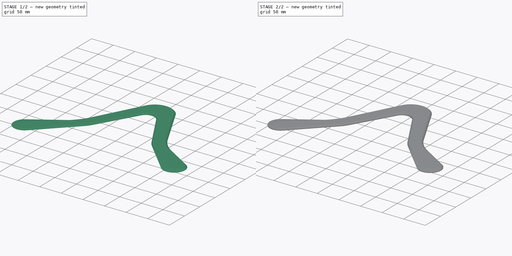
[diagram: build sequence overview — one tinted view per stage of 2, left to right]
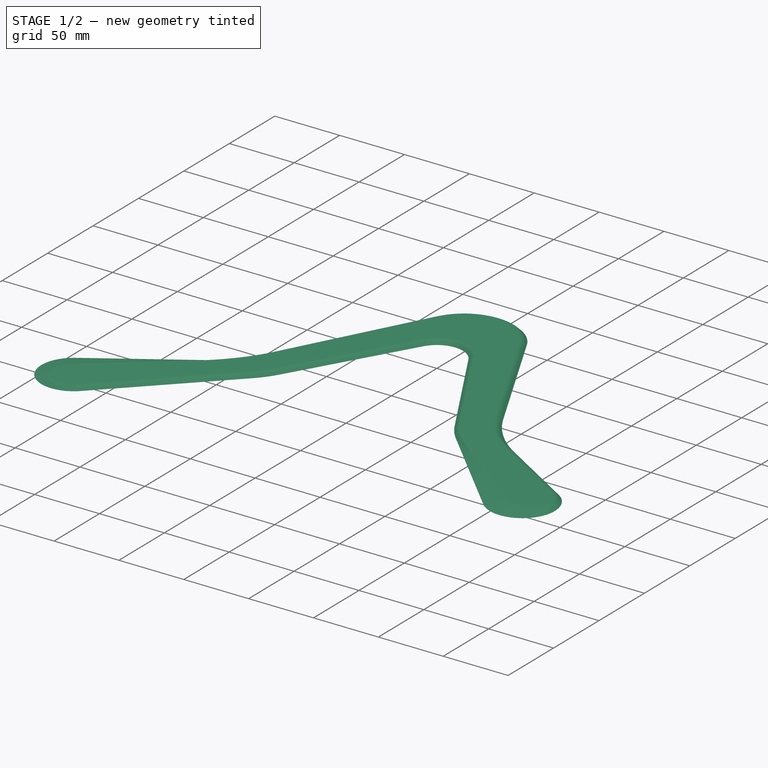
[diagram: stage 1 of 2 — iso view after this stage's code; geometry added in this stage tinted green]
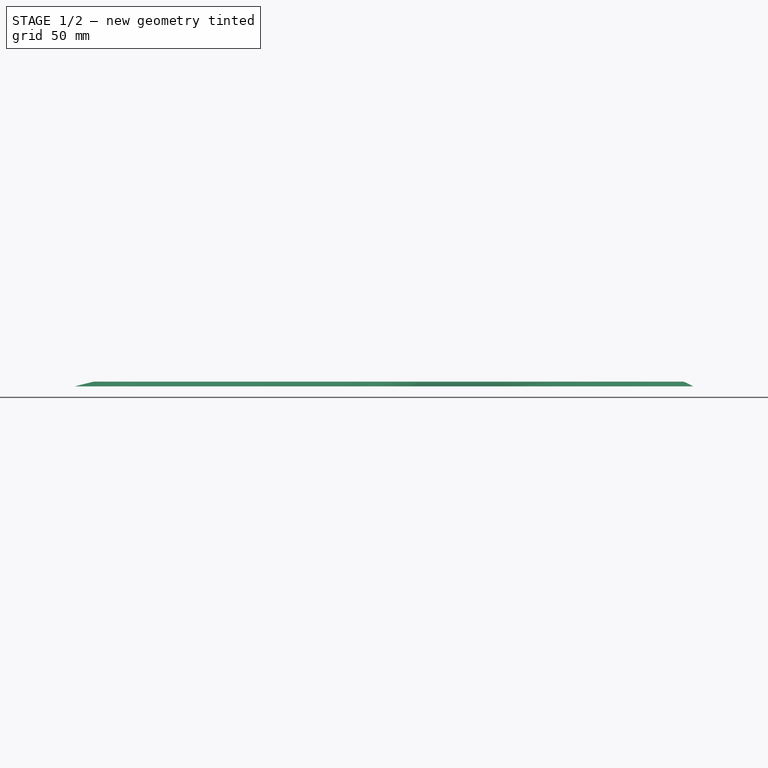
[diagram: stage 1 of 2 — front view after this stage's code; geometry added in this stage tinted green]
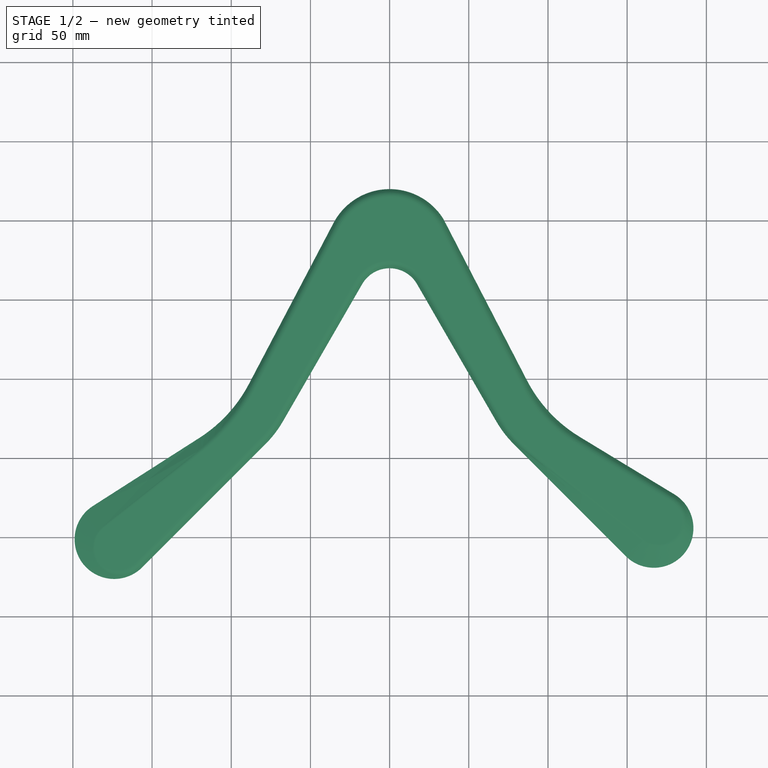
[diagram: stage 1 of 2 — top view after this stage's code; geometry added in this stage tinted green]
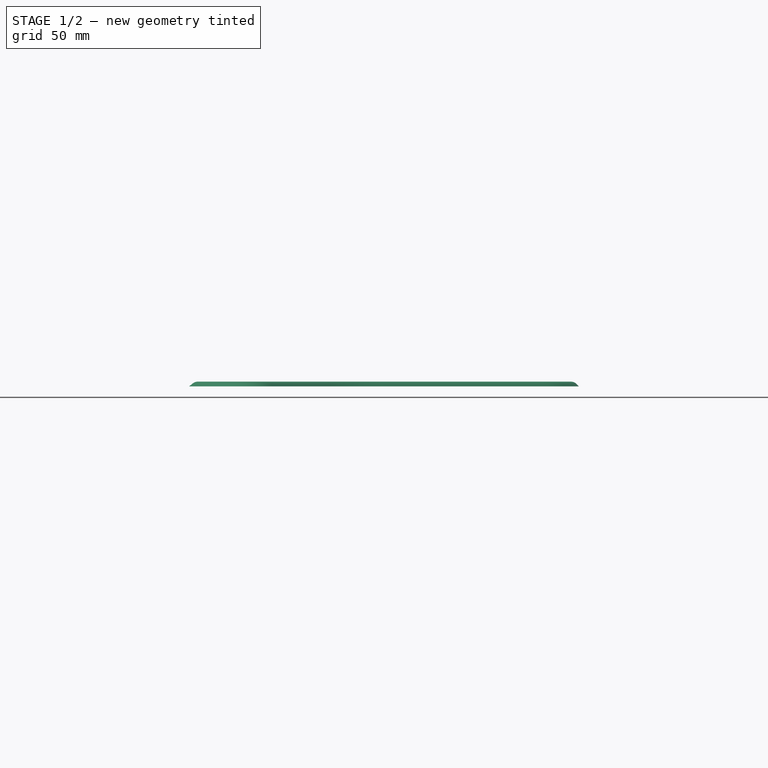
[diagram: stage 1 of 2 — right view after this stage's code; geometry added in this stage tinted green]
FCSTD DOCUMENT  (FreeCAD 1.1R20260223 (Git shallow))
Label: sharp-omega
License: All rights reserved
LicenseURL: https://en.wikipedia.org/wiki/All_rights_reserved
objects: PartDesign::SubShapeBinder×2, App::Point×1, Sketcher::SketchObject×1, PartDesign::AdditiveLoft×1, PartDesign::Fillet×1, PartDesign::Pad×1, PartDesign::Body×1, Spreadsheet::Sheet×1
note: 14 computed .brp shape members not serialized (recipe doc carries the construction recipe); baked Part::Feature solids carry a one-line shape summary decoded from their .brp

FEATURE [App::Point] Origin001
  Role = Origin
FEATURE [PartDesign::SubShapeBinder] Binder001  label="Top Outline"
  BindCopyOnChange = 0
  BindMode = 0
  ClaimChildren = false
  Context = -> Body [Binder001.]
  Fuse = false
  MakeFace = true
  OffsetFill = false
  OffsetIntersection = false
  OffsetJoinType = 0
  OffsetOpenResult = false
  PartialLoad = false
  Placement = pos=(0,0,4) rot=(0,0,1;0rad)
  Refine = true
  Relative = true
  Support = -> [Sketch[Edge19,Edge18,Edge17,Edge32,Edge31,Edge30,Edge29,Edge28]]
  _Version = 2
FEATURE [Sketcher::SketchObject] Sketch  label="Outlines"
  ArcFitTolerance = 1e-06
  AttachmentSupport = -> [Origin]
  ExternalTypes = [0]
  FullyConstrained = true
  MakeInternals = false
  MapMode = 5
  expr: Constraints[15] = <<Vars>>.elbow_inner
  expr: Constraints[16] = <<Vars>>.elbow_outer
  expr: Constraints[18] = <<Vars>>.small_angle / 2
  expr: Constraints[19] = <<Vars>>.small_angle / 2
  expr: Constraints[20] = <<Vars>>.top_length
  expr: Constraints[21] = <<Vars>>.tip_radius
  expr: Constraints[25] = <<Vars>>.large_angle / 2
  expr: Constraints[26] = <<Vars>>.large_angle / 2
  expr: Constraints[27] = <<Vars>>.bottom_length_dingle
  expr: Constraints[28] = <<Vars>>.bottom_length_lead
  expr: Constraints[40] = <<Vars>>.wing_width
  expr: Constraints[42] = <<Vars>>.bottom_length_dingle - 30 mm
  expr: Constraints[43] = <<Vars>>.bottom_length_lead - 30 mm
  expr: Constraints[68] = <<Vars>>.elbow_outer - <<Vars>>.edge_width
  expr: Constraints[69] = <<Vars>>.elbow_inner + <<Vars>>.edge_width
  expr: Constraints[70] = <<Vars>>.edge_width
  expr: Constraints[71] = <<Vars>>.edge_width
  expr: Constraints[80] = <<Vars>>.trailing_edge
  expr: Constraints[88] = <<Vars>>.bottom_length_dingle - 35 mm
  expr: Constraints[89] = <<Vars>>.bottom_length_lead - 10 mm
  sketch-geometry (38):
    g0: LineSegment StartX=-78.4448 StartY=-91.1 StartZ=0 EndX=-156.227 EndY=-168.882 EndZ=0
    g1: ArcOfCircle CenterX=-173.904 CenterY=-151.204 CenterZ=0 NormalX=0 NormalY=0 NormalZ=1 AngleXU=0 Radius=25 StartAngle=2.13999 EndAngle=5.49779
    g2: LineSegment StartX=-187.378 StartY=-130.146 StartZ=0 EndX=-119.991 EndY=-87.0295 EndZ=0
    g3: ArcOfCircle CenterX=-168.497 CenterY=-11.2192 CenterZ=0 NormalX=0 NormalY=0 NormalZ=1 AngleXU=0 Radius=90 StartAngle=5.28158 EndAngle=5.79951
    g4: LineSegment StartX=-88.8206 StartY=-53.0727 StartZ=0 EndX=-35.4116 EndY=48.6015 EndZ=0
    g5: ArcOfCircle CenterX=0 CenterY=30 CenterZ=0 NormalX=0 NormalY=0 NormalZ=1 AngleXU=0 Radius=40 StartAngle=0.5563 EndAngle=2.65791
    g6: LineSegment StartX=119.976 StartY=-86.432 StartZ=0 EndX=179.809 EndY=-122.764 EndZ=0
    g7: ArcOfCircle CenterX=166.833 CenterY=-144.133 CenterZ=0 NormalX=0 NormalY=0 NormalZ=1 AngleXU=0 Radius=25 StartAngle=3.92699 EndAngle=7.30826
    g8: LineSegment StartX=149.155 StartY=-161.811 StartZ=0 EndX=78.4448 EndY=-91.1 EndZ=0
    g9: ArcOfCircle CenterX=127.942 CenterY=-41.6025 CenterZ=0 NormalX=0 NormalY=0 NormalZ=1 AngleXU=0 Radius=70 StartAngle=3.66519 EndAngle=3.92699
    g10: LineSegment StartX=67.3205 StartY=-76.6025 StartZ=0 EndX=17.3205 EndY=10 EndZ=0
    g11: ArcOfCircle CenterX=0 CenterY=0 CenterZ=0 NormalX=0 NormalY=0 NormalZ=1 AngleXU=0 Radius=20 StartAngle=0.523599 EndAngle=2.61799
    g12: LineSegment StartX=-17.3205 StartY=10 StartZ=0 EndX=-67.3205 EndY=-76.6025 EndZ=0
    g13: ArcOfCircle CenterX=-127.942 CenterY=-41.6025 CenterZ=0 NormalX=0 NormalY=0 NormalZ=1 AngleXU=0 Radius=70 StartAngle=5.49779 EndAngle=5.75959
    g14: LineSegment StartX=33.9686 StartY=51.1219 StartZ=0 EndX=86.7607 EndY=-50.874 EndZ=0
    g15: ArcOfCircle CenterX=166.689 CenterY=-9.50398 CenterZ=0 NormalX=0 NormalY=0 NormalZ=1 AngleXU=0 Radius=90 StartAngle=3.61921 EndAngle=4.16667
    g16: LineSegment [constr] StartX=67.3205 StartY=-76.6025 StartZ=0 EndX=93.3013 EndY=-61.6025 EndZ=0
    g17: LineSegment [constr] StartX=-67.3205 StartY=-76.6025 StartZ=0 EndX=-93.3013 EndY=-61.6025 EndZ=0
    g18: LineSegment StartX=-32.7557 StartY=47.2064 StartZ=0 EndX=-86.1647 EndY=-54.4678 EndZ=0
    g19: ArcOfCircle CenterX=-204.005 CenterY=7.4329 CenterZ=0 NormalX=0 NormalY=0 NormalZ=1 AngleXU=0 Radius=133.109 StartAngle=5.3789 EndAngle=5.79951
    g20: LineSegment StartX=-121.711 StartY=-97.1887 StartZ=0 EndX=-180.66 EndY=-143.557 EndZ=0
    g21: ArcOfCircle CenterX=-170.676 CenterY=-156.25 CenterZ=0 NormalX=0 NormalY=0 NormalZ=1 AngleXU=0 Radius=16.1491 StartAngle=2.2373 EndAngle=5.49779
    g22: LineSegment StartX=-159.257 StartY=-167.669 StartZ=0 EndX=-80.5661 EndY=-88.9787 EndZ=0
    g23: ArcOfCircle CenterX=-127.942 CenterY=-41.6025 CenterZ=0 NormalX=0 NormalY=0 NormalZ=1 AngleXU=0 Radius=67 StartAngle=5.49779 EndAngle=5.75959
    g24: LineSegment StartX=-69.9186 StartY=-75.1025 StartZ=0 EndX=-19.9186 EndY=11.5 EndZ=0
    g25: ArcOfCircle CenterX=0 CenterY=0 CenterZ=0 NormalX=0 NormalY=0 NormalZ=1 AngleXU=0 Radius=23 StartAngle=0.523599 EndAngle=2.61799
    g26: LineSegment StartX=19.9186 StartY=11.5 StartZ=0 EndX=69.9186 EndY=-75.1025 EndZ=0
    g27: ArcOfCircle CenterX=134.071 CenterY=-38.064 CenterZ=0 NormalX=0 NormalY=0 NormalZ=1 AngleXU=0 Radius=74.0771 StartAngle=3.66519 EndAngle=4.05634
    g28: LineSegment StartX=88.8848 StartY=-96.7633 StartZ=0 EndX=160.202 EndY=-151.663 EndZ=0
    g29: ArcOfCircle CenterX=169.954 CenterY=-138.994 CenterZ=0 NormalX=0 NormalY=0 NormalZ=1 AngleXU=0 Radius=15.9876 StartAngle=4.05634 EndAngle=7.30826
    g30: LineSegment StartX=178.252 StartY=-125.328 StartZ=0 EndX=116.108 EndY=-87.5932 EndZ=0
    g31: ArcOfCircle CenterX=158.942 CenterY=-17.0539 CenterZ=0 NormalX=0 NormalY=0 NormalZ=1 AngleXU=0 Radius=82.5257 StartAngle=3.61921 EndAngle=4.16667
    g32: LineSegment StartX=85.6514 StartY=-54.9883 StartZ=0 EndX=32.8594 EndY=47.0077 EndZ=0
    g33: ArcOfCircle CenterX=0 CenterY=30 CenterZ=0 NormalX=0 NormalY=0 NormalZ=1 AngleXU=0 Radius=37 StartAngle=0.47762 EndAngle=2.65791
    g34: LineSegment [constr] StartX=-187.378 StartY=-130.146 StartZ=0 EndX=-173.904 EndY=-151.204 EndZ=0
    g35: LineSegment [constr] StartX=166.833 StartY=-144.133 StartZ=0 EndX=179.809 EndY=-122.764 EndZ=0
    g36: LineSegment [constr] StartX=149.155 StartY=-161.811 StartZ=0 EndX=160.202 EndY=-151.663 EndZ=0
    g37: LineSegment [constr] StartX=-187.378 StartY=-130.146 StartZ=0 EndX=-180.66 EndY=-143.557 EndZ=0
  constraints (92):
    c: Tangent(g0,g1) = 1.5708
    c: Tangent(g1,g2) = 1.5708
    c: Tangent(g2,g3) = -1.5708
    c: Tangent(g3,g4) = -1.5708
    c: Tangent(g4,g5) = 1.5708
    c: Tangent(g6,g7) = 1.5708
    c: Tangent(g8,g9) = 1.5708
    c: Tangent(g10,g11) = -1.5708
    c: Tangent(g12,g13) = 1.5708
    c: Tangent(g13,g0) = 1.5708
    c: Tangent(g11,g12) = -1.5708
    c: Coincident(g11,g-1)
    c: Tangent(g9,g10) = 1.5708
    c: PointOnObject(g5,g-2)
    c: Tangent(g7,g8) = 1.5708
    c: Radius(g11) = 20
    c: Radius(g5) = 40
    c: DistanceY(g-1,g5) = 30
    c: Angle(g12,g-2) = 0.523599
    c: Angle(g-2,g10) = 0.523599
    c: Distance(g12,g12) = 100
    c: Radius(g7) = 25
    c: Equal(g1,g7)
    c: Tangent(g15,g14) = -1.5708
    c: Tangent(g15,g6) = -1.5708
    c: Angle(g0,g-2) = 0.785398
    c: Angle(g-2,g8) = 0.785398
    c: Distance(g0,g0) = 110
    c: Distance(g8,g8) = 100
    c: Equal(g13,g9)
    c: Radius(g9) = 70
    c: Equal(g3,g15)
    c: Radius(g15) = 90
    c: Coincident(g16,g9)
    c: PointOnObject(g16,g15)
    c: Coincident(g17,g12)
    c: PointOnObject(g17,g4)
    c: Perpendicular(g17,g12)
    c: Perpendicular(g16,g10)
    c: Equal(g17,g16)
    c: Distance(g17,g17) = 30
    c: Equal(g4,g14)
    c: Distance(g2,g2) = 80
    c: Distance(g6,g6) = 70
    c: Tangent(g18,g19) = 1.5708
    c: Tangent(g19,g20) = 1.5708
    c: Tangent(g20,g21) = -1.5708
    c: Tangent(g21,g22) = -1.5708
    c: Tangent(g22,g23) = -1.5708
    c: Tangent(g23,g24) = -1.5708
    c: Tangent(g24,g25) = 1.5708
    c: Tangent(g25,g26) = 1.5708
    c: Tangent(g26,g27) = -1.5708
    c: Tangent(g27,g28) = -1.5708
    c: Tangent(g28,g29) = -1.5708
    c: Tangent(g30,g31) = 1.5708
    c: Tangent(g31,g32) = 1.5708
    c: Tangent(g32,g33) = -1.5708
    c: Tangent(g33,g18) = -1.5708
    c: Parallel(g22,g0)
    c: Parallel(g24,g12)
    c: Parallel(g18,g4)
    c: Coincident(g33,g5)
    c: Coincident(g25,g11)
    c: Parallel(g26,g10)
    c: Parallel(g32,g14)
    c: Parallel(g30,g6)
    c: Tangent(g29,g30) = -1.5708
    c: Radius(g33) = 37
    c: Radius(g25) = 23
    c: Distance(g0,g22) = 3
    c: Distance(g6,g30) = 3
    c: Coincident(g34,g1)
    c: Coincident(g34,g1)
    c: PointOnObject(g21,g34)
    c: Coincident(g35,g7)
    c: Coincident(g35,g6)
    c: PointOnObject(g29,g35)
    c: Coincident(g36,g7)
    c: Coincident(g36,g28)
    c: Distance(g36,g36) = 15
    c: Coincident(g37,g1)
    c: Coincident(g37,g20)
    c: Equal(g37,g36)
    c: Equal(g4,g18)
    c: Equal(g32,g14)
    c: Equal(g24,g12)
    c: Equal(g10,g26)
    c: Distance(g20,g20) = 75
    c: Distance(g28,g28) = 90
    c: Coincident(g5,g14)
    c: Equal(g12,g10)
FEATURE [PartDesign::SubShapeBinder] Binder  label="Bottom Outline"
  BindCopyOnChange = 0
  BindMode = 0
  ClaimChildren = false
  Context = -> Body [Binder.]
  Fuse = false
  MakeFace = true
  OffsetFill = false
  OffsetIntersection = false
  OffsetJoinType = 0
  OffsetOpenResult = false
  PartialLoad = false
  Placement = pos=(0,0,1) rot=(0,0,1;0rad)
  Refine = true
  Relative = true
  Support = -> [Sketch[Edge11,Edge12,Edge13,Edge14,Edge15,Edge16,Edge1,Edge2]]
  _Version = 2
FEATURE [PartDesign::AdditiveLoft] AdditiveLoft
  Closed = false
  Placement = pos=(0,0,4) rot=(0,0,1;0rad)
  Profile = -> Binder001
  Refine = true
  Ruled = false
  Sections = -> [Binder]
  Suppressed = false
FEATURE [PartDesign::Fillet] Fillet
  Base = -> AdditiveLoft [Face1]
  BaseFeature = -> AdditiveLoft
  Placement = pos=(0,0,4) rot=(0,0,1;0rad)
  Radius = 5
  Refine = true
  SupportTransform = false
  Suppressed = false
  UseAllEdges = false
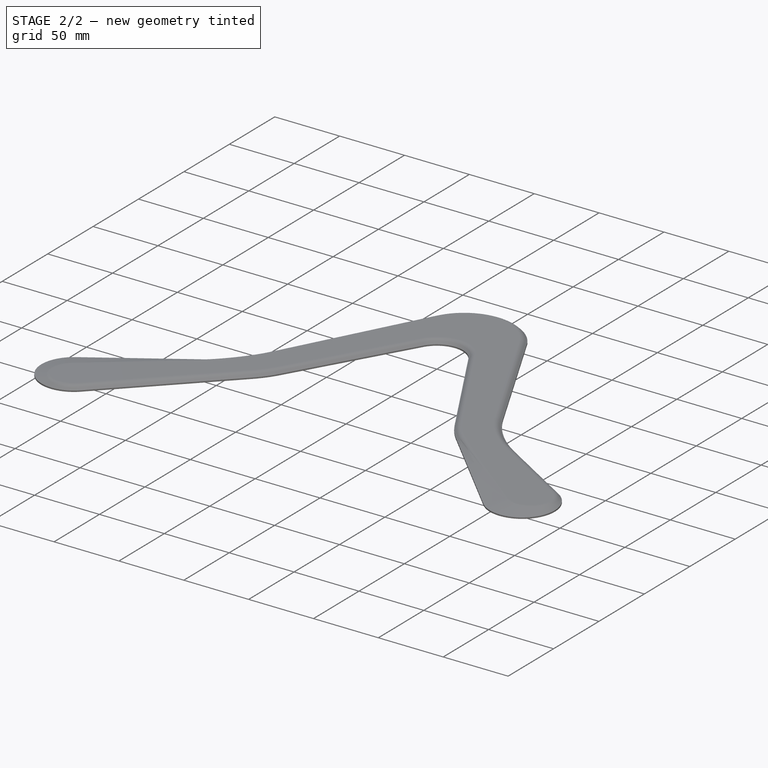
[diagram: stage 2 of 2 — iso view after this stage's code; geometry added in this stage tinted green]
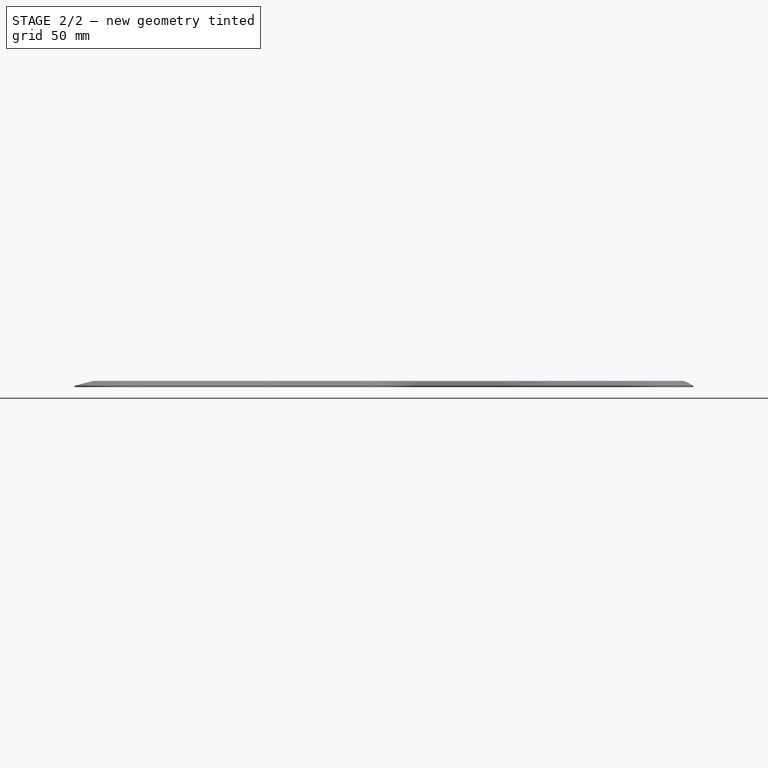
[diagram: stage 2 of 2 — front view after this stage's code; geometry added in this stage tinted green]
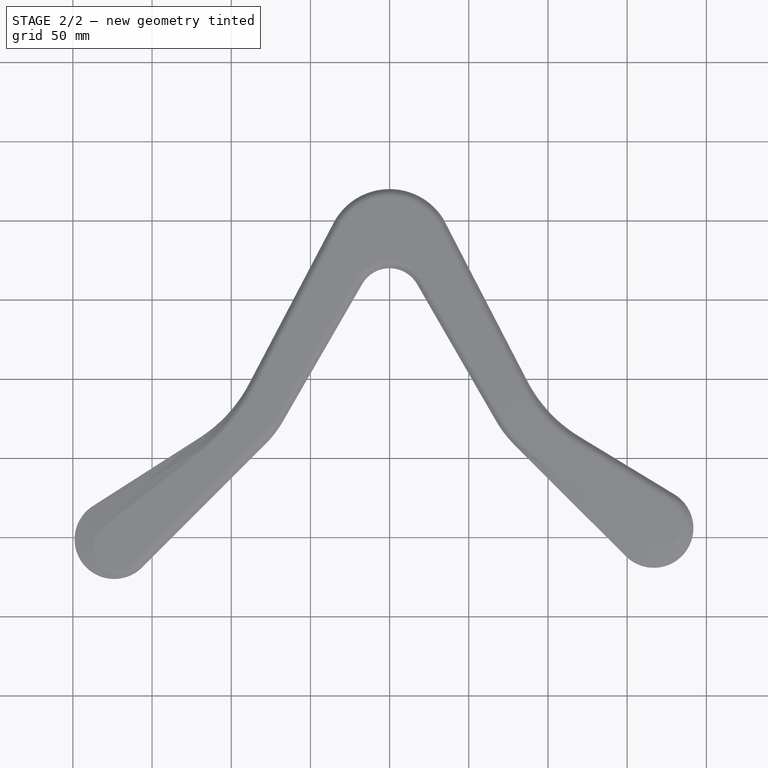
[diagram: stage 2 of 2 — top view after this stage's code; geometry added in this stage tinted green]
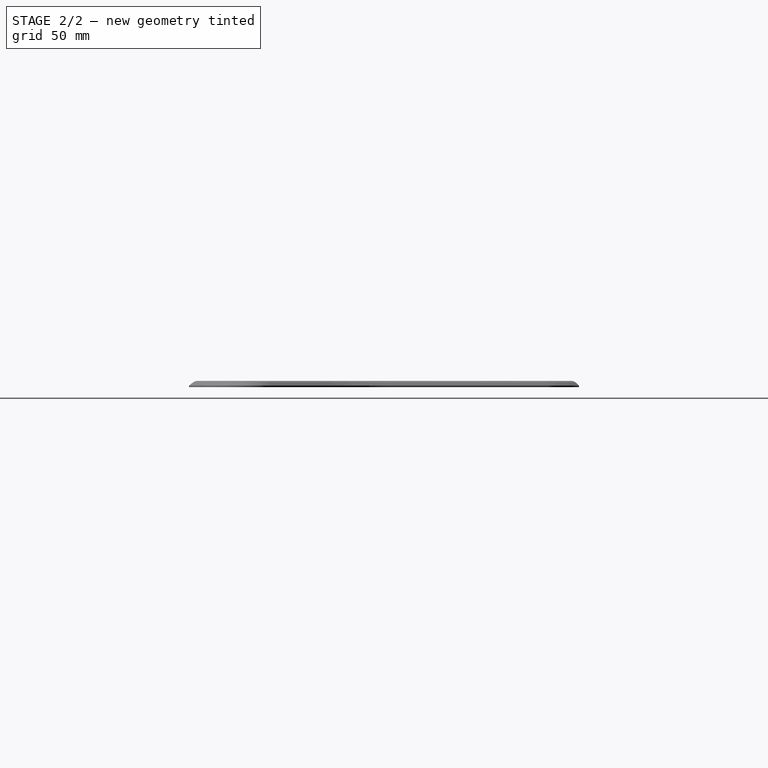
[diagram: stage 2 of 2 — right view after this stage's code; geometry added in this stage tinted green]
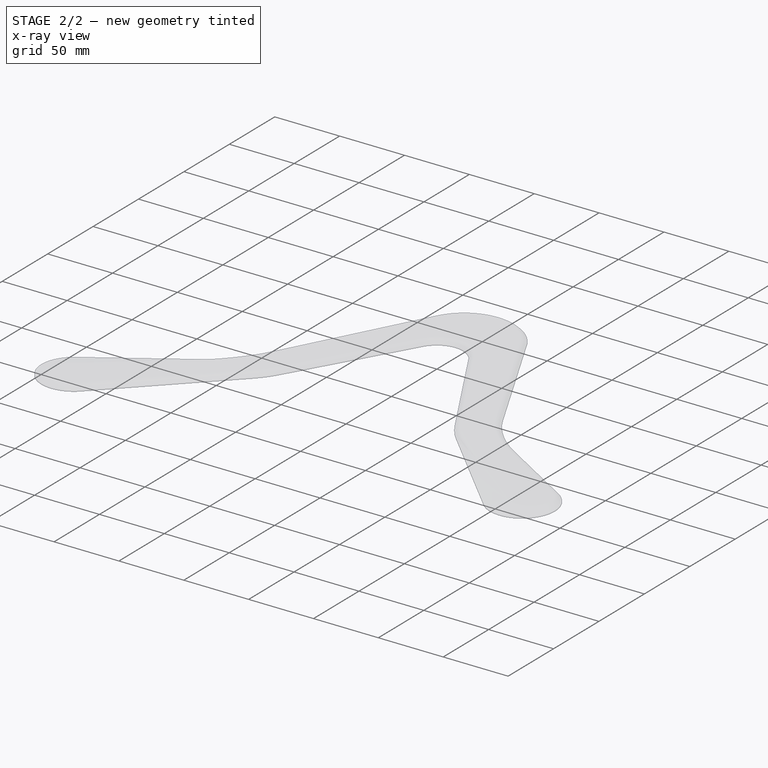
[diagram: stage 2 of 2 — x-ray composite at the iso view; earlier geometry ghosted, this stage's added geometry solid]
FEATURE [PartDesign::Pad] Pad
  BaseFeature = -> Fillet
  Direction = (0,0,-1)
  Length = 1
  Length2 = 10
  Placement = pos=(0,0,4) rot=(0,0,1;0rad)
  Profile = -> Fillet [Face34]
  Refine = true
  SideType = 0
  Suppressed = false
  Type = 0
  Type2 = 0
FEATURE [PartDesign::Body] Body  label="Sharp Omega"
  AllowCompound = true
  Group = -> [Sketch,Binder001,Binder,AdditiveLoft,Fillet,Pad]
  Origin = -> Origin
  Tip = -> Pad
FEATURE [Spreadsheet::Sheet] Spreadsheet  label="Vars"
  cells = A1='edge_width; B1(edge_width)==3 mm; A2='tip_radius; B2(tip_radius)==25 mm; A3='wing_width; B3(wing_width)==30 mm; A4='elbow_outer; B4(elbow_outer)==40 mm; A5='elbow_inner; B5(elbow_inner)==20 mm; A6='trailing_edge; B6(trailing_edge)==15 mm; A7='small_angle; B7(small_angle)=60; A8='large_angle; B8(large_angle)=90; A9='top_length; B9(top_length)==100 mm; A10='bottom_length_lead; B10(bottom_length_lead)==100 mm; A11='bottom_length_dingle; B11(bottom_length_dingle)==110 mm
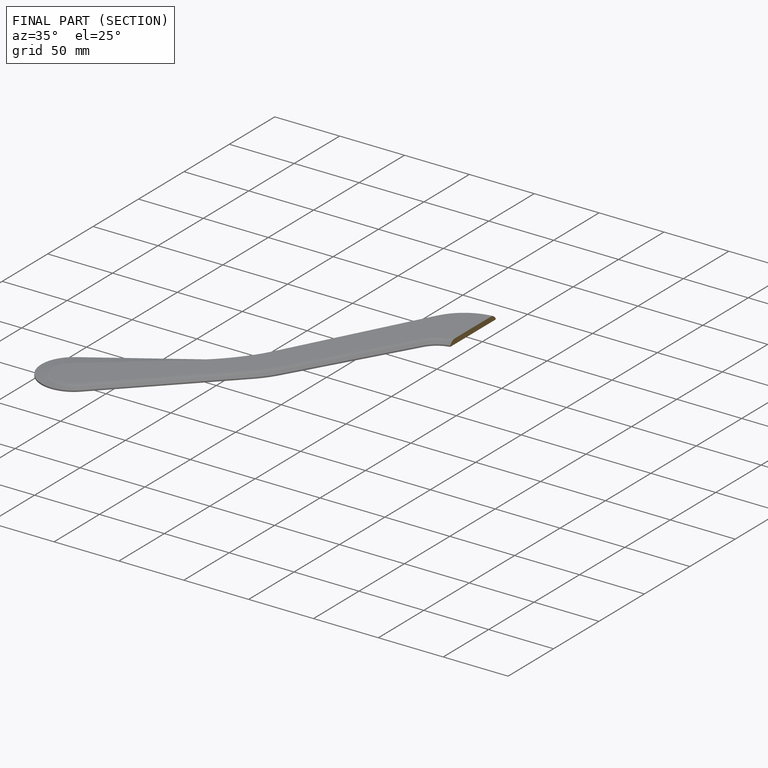
[diagram: finished part — half-section view (interior)]
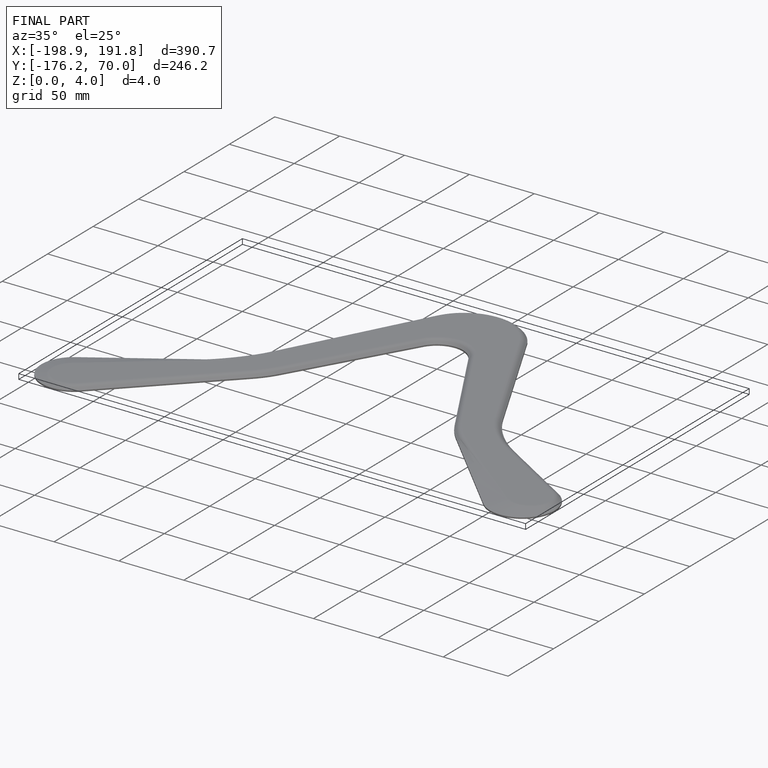
[diagram: finished part — iso view with bounding-box wireframe]
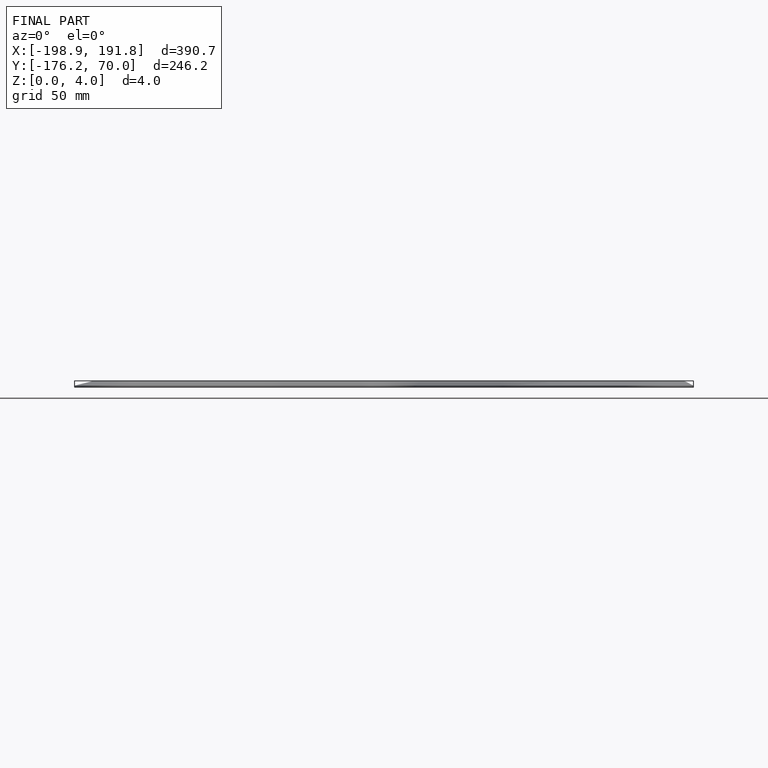
[diagram: finished part — front view with bounding-box wireframe]
